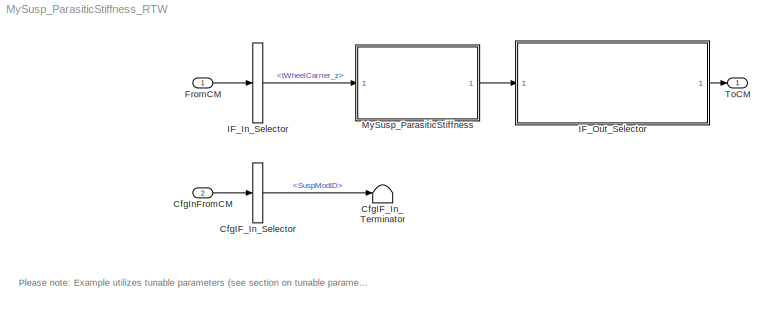
MODEL MySusp_ParasiticStiffness_RTW
KIND model
CONFIG InitFcn = vehicle = 'Car'; if ~length(which('cmself')), cmenv; end\nMySusp_ParasiticStiffness_RTW_bus
CONFIG PreLoadFcn = vehicle = 'Car'; if ~length(which('cmself')), cmenv; end\nMySusp_ParasiticStiffness_RTW_bus\nMySusp_ParasiticStiffness_RTW_params
BLOCK [BusSelector] CfgIF_In_Selector
  OutputAsBus = off
  OutputSignals = SuspModID
  Ports = [1, 1]
  SID = 9
BLOCK [Terminator] CfgIF_In_Terminator
  SID = 10
BLOCK [Inport] CfgInFromCM
  IconDisplay = Port number
  OutDataTypeStr = Bus: cmSusp_ParasiticEffectsCfgIn
  Port = 2
  SID = 8
BLOCK [Inport] FromCM
  IconDisplay = Port number
  OutDataTypeStr = Bus: cmSusp_ParasiticEffectsIn
  SID = 1
BLOCK [BusSelector] IF_In_Selector
  OutputAsBus = off
  OutputSignals = tWheelCarrier_z
  Ports = [1, 1]
  SID = 2
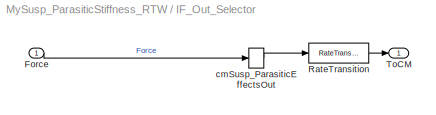
BLOCK [SubSystem] IF_Out_Selector
  OpenFcn = cmSignalSelect('SignalSelection_CB',gcb)
  Ports = [1, 1]
  RequestExecContextInheritance = off
  SID = 5
  UserData = DataTag0
  UserDataPersistent = on
BLOCK [Inport] IF_Out_Selector/Force
  IconDisplay = Port number
  SID = 14
BLOCK [RateTransition] IF_Out_Selector/RateTransition
  OutPortSampleTime = str2num(get_param(bdroot,'FixedStep'))
  SID = 6
BLOCK [Outport] IF_Out_Selector/ToCM
  IconDisplay = Port number
  SID = 7
BLOCK [BusCreator] IF_Out_Selector/cmSusp_ParasiticEffectsOut
  InheritFromInputs = on
  Inputs = 1
  Ports = [1, 1]
  SID = 11
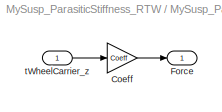
BLOCK [SubSystem] MySusp_ParasiticStiffness
  Ports = [1, 1]
  RequestExecContextInheritance = off
  SID = 15
BLOCK [Gain] MySusp_ParasiticStiffness/Coeff
  Gain = Coeff
  OutDataTypeStr = Inherit: Inherit via internal rule
  ParamDataTypeStr = Inherit: Inherit via internal rule
  SID = 13
  SaturateOnIntegerOverflow = off
BLOCK [Outport] MySusp_ParasiticStiffness/Force
  IconDisplay = Port number
  SID = 17
BLOCK [Inport] MySusp_ParasiticStiffness/tWheelCarrier_z
  IconDisplay = Port number
  SID = 16
BLOCK [Outport] ToCM
  IconDisplay = Port number
  OutDataTypeStr = Bus: cmSusp_ParasiticEffectsOut
  SID = 4
ANNOTATION (root): \n \n Please note: Example utilizes tunable parameters (see section on tunable parameters in the Programmers Guide). \n \n For parasitic stiffness user models of the class Susp_ParasiticEffects at least one modelclass-specific parameter (*.TimeInvariant) needs to be specified in the \n "Modelclass-specific Parameters" dialog of the CarMaker GUI.
LINE CfgIF_In_Selector:1 -> CfgIF_In_Terminator:1
LINE CfgInFromCM:1 -> CfgIF_In_Selector:1
LINE FromCM:1 -> IF_In_Selector:1
LINE IF_In_Selector:1 -> MySusp_ParasiticStiffness:1
LINE IF_Out_Selector/Force:1 -> IF_Out_Selector/cmSusp_ParasiticEffectsOut:1
LINE IF_Out_Selector/RateTransition:1 -> IF_Out_Selector/ToCM:1
LINE IF_Out_Selector/cmSusp_ParasiticEffectsOut:1 -> IF_Out_Selector/RateTransition:1
LINE IF_Out_Selector:1 -> ToCM:1
LINE MySusp_ParasiticStiffness/Coeff:1 -> MySusp_ParasiticStiffness/Force:1
LINE MySusp_ParasiticStiffness/tWheelCarrier_z:1 -> MySusp_ParasiticStiffness/Coeff:1
LINE MySusp_ParasiticStiffness:1 -> IF_Out_Selector:1
